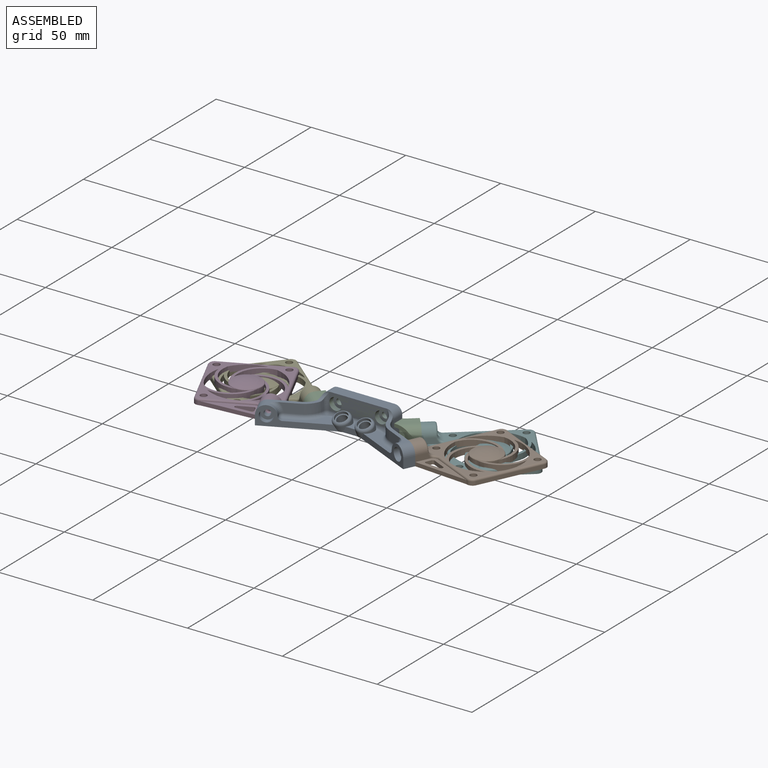
[diagram: assembled view]
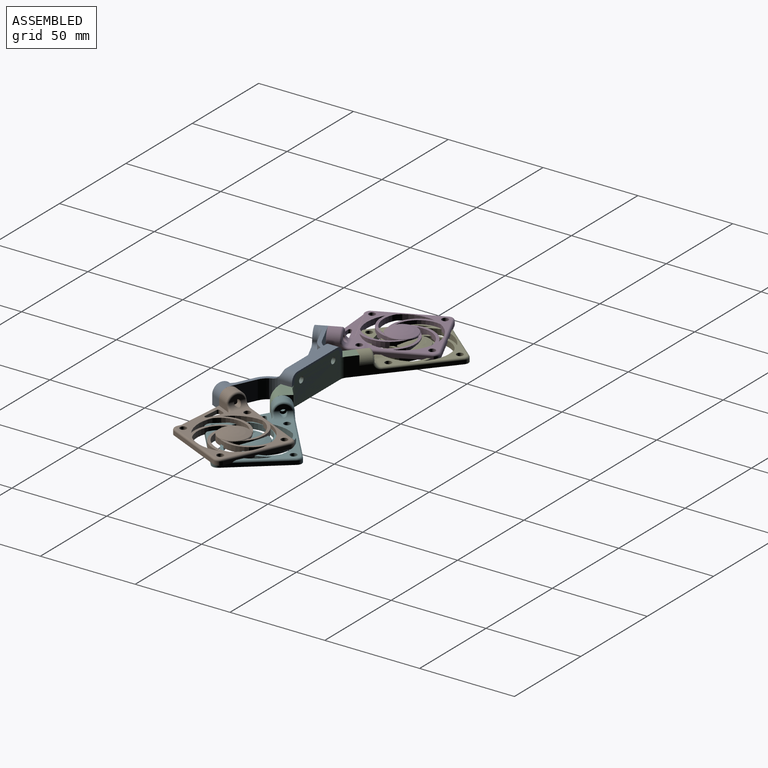
[diagram: assembled view, second angle]
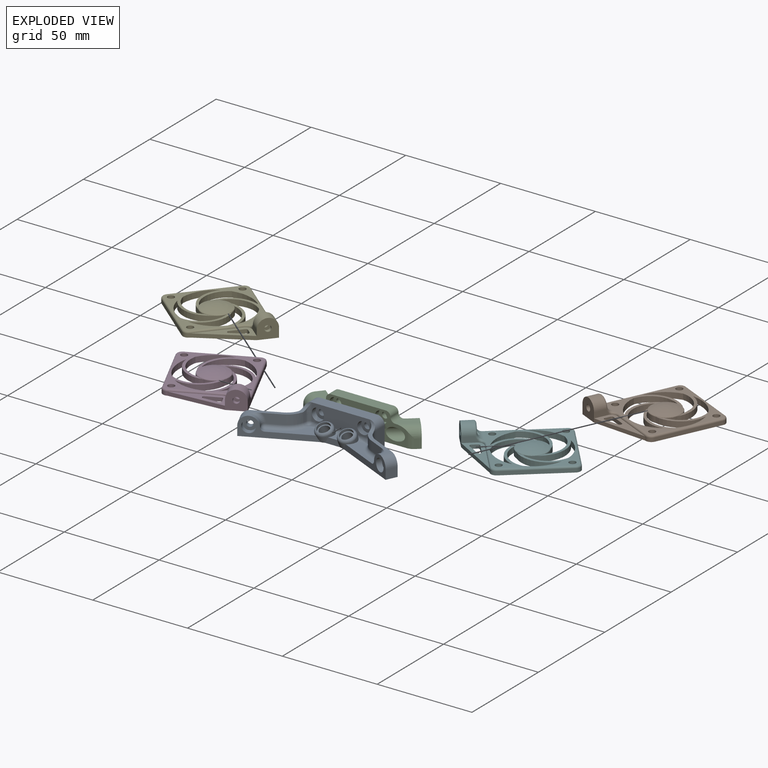
[diagram: exploded view]
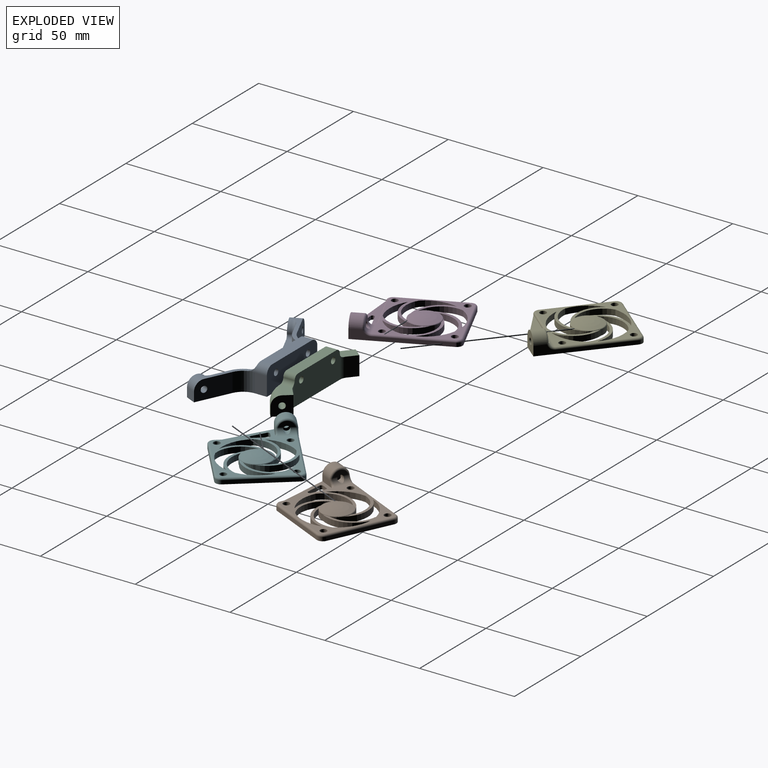
[diagram: exploded view, second angle]
ASSEMBLY  parts=6 mates=4
PART A: 75 faces, bbox 83.4x28.1x16.4 mm
  f0: cylinder r=2.6mm len=7.92mm, axis (0,-0.41,0.91), area 84.6mm2, adj f20,f65
  f1: cylinder r=4.5mm len=9.19mm, axis (0,-0.41,0.91), area 41.3mm2, adj f5,f6,f8,f14,f15,f19,f20,f57
  f2: cylinder r=2.6mm len=7.92mm, axis (0,-0.41,0.91), area 84.6mm2, adj f20,f67
  f3: cylinder r=4.5mm len=9.19mm, axis (0,-0.41,0.91), area 41.3mm2, adj f4,f5,f6,f7,f8,f15,f16,f20
  f4: plane 21.26x14.93mm, normal (0,0,1), area 81.6mm2, adj f3,f7,f16,f50,f59,f60
  f5: cylinder r=2mm len=6.29mm, axis (1,0,0), area 14.1mm2, adj f1,f3,f6,f8
  f6: plane 5.08x4.1mm, normal (0,0,1), area 14mm2, adj f1,f3,f5,f15
  f7: cylinder r=2mm len=6.26mm, axis (1,0,0), area 16.8mm2, adj f3,f4,f8,f58
  f8: plane 30.35x9.12mm, normal (0,-1,0), area 188.2mm2, adj f1,f3,f5,f7,f21,f29,f32,f44
  f9: plane 10x6.27mm, normal (1,0,0), area 62.7mm2, adj f10,f20,f37,f71
  f10: plane 38x14mm, normal (0,1,0), area 508mm2, adj f9,f11,f20,f21,f27,f30,f71,f73
  f11: plane 10x6.27mm, normal (-1,0,0), area 62.7mm2, adj f10,f20,f36,f73
  f12: plane 17.46x10mm, normal (-0.42,0.91,0), area 178.7mm2, adj f13,f20,f22,f24,f36,f43
  f13: plane 5.44x5mm, normal (-0.91,-0.42,0), area 30mm2, adj f12,f14,f20,f43
  f14: plane 33.24x15.5mm, normal (0.42,-0.91,0), area 133.3mm2, adj f1,f13,f19,f20,f26,f43,f51
  f15: plane 8.03x3mm, normal (0,-1,0), area 18.8mm2, adj f1,f3,f6,f20
  f16: plane 33.24x15.5mm, normal (-0.42,-0.91,0), area 133.3mm2, adj f3,f4,f17,f20,f35,f42,f50
  f17: plane 5.44x5mm, normal (0.91,-0.42,0), area 30mm2, adj f16,f18,f20,f42
  f18: plane 17.46x10mm, normal (0.42,0.91,0), area 178.7mm2, adj f17,f20,f23,f33,f37,f42
  f19: plane 21.26x14.93mm, normal (0,0,1), area 81.6mm2, adj f1,f14,f51,f54,f55,f57
  f20: plane 83.41x28.09mm, normal (0,0,-1), area 798.7mm2, adj f0,f1,f2,f3,f9,f10,f11,f12
  f21: plane 30x6mm, normal (0,0,1), area 180mm2, adj f8,f10,f71,f73
  f22: plane 19.47x14.08mm, normal (0,0,1), area 47.2mm2, adj f12,f36,f38,f39,f43,f52,f64
  f23: plane 19.47x14.08mm, normal (0,0,1), area 47.2mm2, adj f18,f37,f40,f41,f42,f62,f63
  f24: cylinder r=1.65mm len=4.26mm, axis (0.42,-0.91,0), area 31.1mm2, adj f12,f25
  f25: plane 6.5x5.89mm, normal (0.42,-0.91,0), area 24.6mm2, adj f24,f26
  f26: cylinder r=3.25mm len=7.16mm, axis (0.42,-0.91,0), area 61.3mm2, adj f14,f25
  f27: cylinder r=1.65mm len=3.3mm, axis (0,-1,0), area 31.1mm2, adj f10,f28
  f28: plane 6.5x6.5mm, normal (0,-1,0), area 24.6mm2, adj f27,f29
  f29: cylinder r=3.25mm len=6.5mm, axis (0,-1,0), area 61.3mm2, adj f8,f28,f48
  f30: cylinder r=1.65mm len=3.3mm, axis (0,-1,0), area 31.1mm2, adj f10,f31
  f31: plane 6.5x6.5mm, normal (0,-1,0), area 24.6mm2, adj f30,f32
  f32: cylinder r=3.25mm len=6.5mm, axis (0,-1,0), area 61.3mm2, adj f8,f31,f45
  f33: cylinder r=1.65mm len=4.26mm, axis (-0.42,-0.91,0), area 31.1mm2, adj f18,f34
  f34: plane 6.5x5.89mm, normal (-0.42,-0.91,0), area 24.6mm2, adj f33,f35
  f35: cylinder r=3.25mm len=7.16mm, axis (-0.42,-0.91,0), area 61.3mm2, adj f16,f34
  f36: cylinder r=9mm len=10mm, axis (0,0,-1), area 102.1mm2, adj f11,f12,f20,f22,f74
  f37: cylinder r=9mm len=10mm, axis (0,0,-1), area 102.1mm2, adj f9,f18,f20,f23,f72
  f38: plane 8.49x5mm, normal (0.42,-0.91,0), area 39.6mm2, adj f22,f39,f52,f54
  f39: cylinder r=11mm len=8.5mm, axis (0,0,-1), area 55.6mm2, adj f22,f38,f47,f48,f49,f55,f64
  f40: cylinder r=11mm len=8.5mm, axis (0,0,-1), area 55.6mm2, adj f23,f41,f44,f45,f46,f59,f63
  f41: plane 8.49x5mm, normal (-0.42,-0.91,0), area 39.6mm2, adj f23,f40,f60,f62
  f42: cylinder r=5mm len=11.6mm, axis (-0.42,-0.91,0), area 62.8mm2, adj f16,f17,f18,f23,f50,f62
  f43: cylinder r=5mm len=11.6mm, axis (-0.42,0.91,0), area 62.8mm2, adj f12,f13,f14,f22,f51,f52
  f44: cylinder r=2mm len=3.08mm, axis (0,0,-1), area 8.8mm2, adj f8,f40,f45,f58
  f45: bspline ~3.27x2.36mm, area 5.1mm2, adj f32,f40,f44,f46
  f46: cylinder r=2mm len=4.08mm, axis (0,0,-1), area 6.5mm2, adj f8,f40,f45,f63,f71
  f47: cylinder r=2mm len=3.08mm, axis (0,0,-1), area 8.8mm2, adj f8,f39,f48,f56
  f48: bspline ~3.27x2.36mm, area 5.1mm2, adj f29,f39,f47,f49
  f49: cylinder r=2mm len=4.08mm, axis (0,0,-1), area 6.5mm2, adj f8,f39,f48,f64,f73
  f50: cylinder r=2mm len=2.66mm, axis (-0.42,-0.91,0), area 6.3mm2, adj f4,f16,f42,f61
  f51: cylinder r=2mm len=2.66mm, axis (-0.42,0.91,0), area 6.3mm2, adj f14,f19,f43,f53
  f52: torus R=7mm, axis (-0.42,0.91,0), area 20mm2, adj f22,f38,f43,f53
  f53: sphere r=2mm, area 6.3mm2, adj f51,f52,f54
  f54: cylinder r=2mm len=7.43mm, axis (0.91,0.42,0), area 22.8mm2, adj f19,f38,f53,f55
  f55: torus R=13mm, axis (0,0,1), area 36.9mm2, adj f19,f39,f54,f56
  f56: sphere r=2mm, area 5.7mm2, adj f47,f55,f57
  f57: cylinder r=2mm len=6.26mm, axis (1,0,0), area 16.8mm2, adj f1,f8,f19,f56
  f58: sphere r=2mm, area 5.9mm2, adj f7,f44,f59
  f59: torus R=13mm, axis (0,0,1), area 36.9mm2, adj f4,f40,f58,f60
  f60: cylinder r=2mm len=7.43mm, axis (0.91,-0.42,0), area 22.8mm2, adj f4,f41,f59,f61
  f61: sphere r=2mm, area 6.3mm2, adj f50,f60,f62
  f62: torus R=7mm, axis (0.42,0.91,0), area 20mm2, adj f23,f41,f42,f61
  f63: cylinder r=4mm len=4.69mm, axis (1,0,0), area 11.8mm2, adj f23,f40,f46,f71,f72
  f64: cylinder r=4mm len=4.69mm, axis (1,0,0), area 11.8mm2, adj f22,f39,f49,f73,f74
  f65: plane 6.5x5.94mm, normal (0,-0.41,0.91), area 11.9mm2, adj f0,f66
  f66: cylinder r=3.25mm len=6.55mm, axis (0,-0.41,0.91), area 30.6mm2, adj f65,f70
  f67: plane 6.5x5.94mm, normal (0,-0.41,0.91), area 11.9mm2, adj f2,f68
  f68: cylinder r=3.25mm len=6.55mm, axis (0,-0.41,0.91), area 30.6mm2, adj f67,f69
  f69: torus R=3mm, axis (0,-0.41,0.91), area 51.6mm2, adj f3,f8,f68
  f70: torus R=3mm, axis (0,-0.41,0.91), area 51.6mm2, adj f1,f8,f66
  f71: cylinder r=4mm len=6.27mm, axis (0,-1,0), area 38.6mm2, adj f8,f9,f10,f21,f46,f63,f72
  f72: torus R=13mm, axis (0,0,1), area 2.7mm2, adj f37,f63,f71
  f73: cylinder r=4mm len=6.27mm, axis (0,1,0), area 38.6mm2, adj f8,f10,f11,f21,f49,f64,f74
  f74: torus R=13mm, axis (0,0,1), area 2.7mm2, adj f36,f64,f73
PART B: 70 faces, bbox 50.2x40.5x10.4 mm
  f0: plane 50x40mm, normal (0,0,-1), area 1039.2mm2, adj f3,f4,f5,f6,f7,f8,f10,f11
  f1: cylinder r=1.65mm len=3.79mm, axis (-1,0,0), area 27.7mm2, adj f2,f37,f56
  f2: cylinder r=3mm len=9.35mm, axis (0,-1,0), area 30mm2, adj f1,f36,f37,f44,f46,f48,f51,f52
  f3: cylinder r=18.5mm len=15.49mm, axis (0,0,-1), area 55.1mm2, adj f0,f4,f35,f36
  f4: cylinder r=14.5mm len=21.17mm, axis (0,0,-1), area 73.3mm2, adj f0,f3,f5,f36
  f5: cylinder r=8mm len=5.63mm, axis (0,0,-1), area 18.7mm2, adj f0,f4,f35,f61
  f6: cylinder r=14.5mm len=21.52mm, axis (0,0,-1), area 73.3mm2, adj f0,f7,f26,f36
  f7: cylinder r=8mm len=4.64mm, axis (0,0,-1), area 18.7mm2, adj f0,f6,f8,f61
  f8: cylinder r=13mm len=15.13mm, axis (0,0,-1), area 69.2mm2, adj f0,f7,f26,f36
  f9: plane 7x3mm, normal (0,-1,0), area 20.1mm2, adj f10,f27,f38,f46,f69
  f10: plane 10x10mm, normal (-1,0,0), area 80.7mm2, adj f0,f9,f11,f38,f53,f62
  f11: plane 47x5mm, normal (0,1,0), area 115.4mm2, adj f0,f10,f12,f38,f49,f51
  f12: cylinder r=3mm len=3mm, axis (0,0,-1), area 9.4mm2, adj f0,f11,f13,f47
  f13: plane 34x2mm, normal (1,0,0), area 68mm2, adj f0,f12,f14,f45
  f14: cylinder r=3mm len=3mm, axis (0,0,-1), area 9.4mm2, adj f0,f13,f15,f43
  f15: plane 34x2mm, normal (0,-1,0), area 68mm2, adj f0,f14,f16,f41
  f16: cylinder r=3mm len=3mm, axis (0,0,-1), area 9.4mm2, adj f0,f15,f39,f62
  f17: cylinder r=13mm len=17.35mm, axis (0,0,-1), area 69.2mm2, adj f0,f18,f28,f36
  f18: cylinder r=18.5mm len=15.89mm, axis (0,0,-1), area 55.1mm2, adj f0,f17,f19,f36
  f19: cylinder r=14.5mm len=19.77mm, axis (0,0,-1), area 73.3mm2, adj f0,f18,f28,f36
  f20: cylinder r=13mm len=19.67mm, axis (0,0,-1), area 69.2mm2, adj f0,f21,f29,f36
  f21: cylinder r=18.5mm len=17.46mm, axis (0,0,-1), area 55.1mm2, adj f0,f20,f22,f36
  f22: cylinder r=14.5mm len=16.08mm, axis (0,0,-1), area 73.3mm2, adj f0,f21,f29,f36
  f23: cylinder r=13mm len=20.07mm, axis (0,0,-1), area 69.2mm2, adj f0,f24,f30,f36
  f24: cylinder r=18.5mm len=17.32mm, axis (0,0,-1), area 55.1mm2, adj f0,f23,f25,f36
  f25: cylinder r=14.5mm len=18.75mm, axis (0,0,-1), area 73.3mm2, adj f0,f24,f30,f36
  f26: cylinder r=18.5mm len=12.76mm, axis (0,0,-1), area 55.1mm2, adj f0,f6,f8,f36
  f27: cylinder r=3mm len=2.25mm, axis (0,0,-1), area 1mm2, adj f9,f44,f69
  f28: cylinder r=8mm len=5.18mm, axis (0,0,-1), area 18.7mm2, adj f0,f17,f19,f61
  f29: cylinder r=8mm len=5.92mm, axis (0,0,-1), area 18.7mm2, adj f0,f20,f22,f61
  f30: cylinder r=8mm len=6.07mm, axis (0,0,-1), area 18.7mm2, adj f0,f23,f25,f61
  f31: cylinder r=1.75mm len=3.5mm, axis (0,0,-1), area 33mm2, adj f0,f36
  f32: cylinder r=1.75mm len=3.5mm, axis (0,0,-1), area 33mm2, adj f0,f36
  f33: cylinder r=1.75mm len=3.5mm, axis (0,0,-1), area 33mm2, adj f0,f36
  f34: cylinder r=1.75mm len=3.5mm, axis (0,0,-1), area 33mm2, adj f0,f36
  f35: cylinder r=13mm len=18.5mm, axis (0,0,-1), area 69.2mm2, adj f0,f3,f5,f36
  f36: plane 39x38mm, normal (0,0,1), area 507.4mm2, adj f2,f3,f4,f6,f8,f17,f18,f19
  f37: plane 7.75x3mm, normal (1,0,0), area 16mm2, adj f1,f2,f50
  f38: cylinder r=5mm len=10mm, axis (1,0,0), area 94.4mm2, adj f9,f10,f11,f48,f50,f52
  f39: torus R=2mm, axis (0,0,1), area 6.5mm2, adj f16,f36,f40,f41
  f40: cylinder r=1mm len=24mm, axis (0,-1,0), area 37.7mm2, adj f36,f39,f42,f69
  f41: cylinder r=1mm len=34mm, axis (1,0,0), area 53.4mm2, adj f15,f36,f39,f43
  f42: torus R=4mm, axis (0,0,1), area 3.8mm2, adj f36,f40,f44,f69
  f43: torus R=2mm, axis (0,0,1), area 6.5mm2, adj f14,f36,f41,f45
  f44: bspline ~3.62x2.56mm, area 4.6mm2, adj f2,f27,f42,f46
  f45: cylinder r=1mm len=34mm, axis (0,1,0), area 53.4mm2, adj f13,f36,f43,f47
  f46: torus R=4mm, axis (0,-1,0), area 2.5mm2, adj f2,f9,f44,f48
  f47: torus R=2mm, axis (0,0,1), area 6.5mm2, adj f12,f36,f45,f49
  f48: bspline ~2.93x1.36mm, area 1.6mm2, adj f2,f38,f46,f50
  f49: cylinder r=1mm len=37mm, axis (-1,0,0), area 58.1mm2, adj f11,f36,f47,f51
  f50: torus R=4mm, axis (-1,0,0), area 19.2mm2, adj f37,f38,f48,f52
  f51: torus R=4mm, axis (0,1,0), area 7mm2, adj f2,f11,f49,f52
  f52: bspline ~3.07x1.41mm, area 1.6mm2, adj f2,f38,f50,f51
  f53: cylinder r=1.65mm len=3.3mm, axis (-1,0,0), area 20.7mm2, adj f10,f57
  f54: plane 6.73x2.8mm, normal (0,-1,0), area 18.8mm2, adj f0,f56,f57,f58
  f55: plane 6.73x2.8mm, normal (0,1,0), area 18.8mm2, adj f0,f56,f57,f59
  f56: plane 8.4x5.8mm, normal (-1,0,0), area 35.3mm2, adj f0,f1,f54,f55,f58,f59
  f57: plane 8.4x5.8mm, normal (1,0,0), area 35.3mm2, adj f0,f53,f54,f55,f58,f59
  f58: plane 2.9x2.8mm, normal (0,-0.5,-0.87), area 9.4mm2, adj f54,f56,f57,f59
  f59: plane 2.9x2.8mm, normal (0,0.5,-0.87), area 9.4mm2, adj f55,f56,f57,f58
  f60: torus R=0.11mm, axis (0,0,-1), area 190.8mm2, adj f61
  f61: torus R=7.51mm, axis (0,0,-1), area 23.8mm2, adj f5,f7,f28,f29,f30,f36,f60
  f62: plane 27x10mm, normal (-0.94,-0.35,0), area 57.6mm2, adj f0,f10,f16,f69
  f63: cylinder r=1mm len=2mm, axis (0,0,-1), area 3.1mm2, adj f0,f64,f68,f69
  f64: plane 7.26x2mm, normal (-1,0,0), area 14.5mm2, adj f0,f63,f65,f69
  f65: cylinder r=1mm len=2mm, axis (0,0,-1), area 5.6mm2, adj f0,f64,f66,f69
  f66: plane 7.26x2.69mm, normal (0.94,0.35,0), area 15.5mm2, adj f0,f65,f67,f69
  f67: cylinder r=1mm len=2mm, axis (0,0,-1), area 3.9mm2, adj f0,f66,f68,f69
  f68: plane 2.69x2mm, normal (0,-1,0), area 5.4mm2, adj f0,f63,f67,f69
  f69: plane 27x10mm, normal (0,0,1), area 102.5mm2, adj f9,f27,f40,f42,f62,f63,f64,f65
PART C: 34 faces, bbox 64.1x17.5x16.6 mm
  f0: plane 10.87x8.52mm, normal (0,0,1), area 45.2mm2, adj f6,f9,f10,f11,f19,f26
  f1: cylinder r=5mm len=11.57mm, axis (0,0,-1), area 36.8mm2, adj f2,f12,f13,f14,f17
  f2: plane 10x4.42mm, normal (0.64,0.77,0), area 57.6mm2, adj f1,f3,f13,f14
  f3: plane 10x7.66mm, normal (-0.77,0.64,0), area 86.1mm2, adj f2,f4,f13,f14,f27,f29
  f4: plane 5x2.44mm, normal (-0.64,-0.77,0), area 15.9mm2, adj f3,f5,f14,f27
  f5: cylinder r=5mm len=8.21mm, axis (0,0,-1), area 23.1mm2, adj f4,f6,f14,f27
  f6: plane 52.8x16.63mm, normal (0,-1,0), area 505.6mm2, adj f0,f5,f7,f13,f14,f15,f16,f17
  f7: cylinder r=5mm len=8.21mm, axis (0,0,-1), area 23.1mm2, adj f6,f8,f14,f26
  f8: plane 5x2.44mm, normal (0.64,-0.77,0), area 15.9mm2, adj f7,f9,f14,f26
  f9: plane 10x7.66mm, normal (0.77,0.64,0), area 86.1mm2, adj f0,f8,f10,f14,f26,f28
  f10: plane 10x4.42mm, normal (-0.64,0.77,0), area 57.6mm2, adj f0,f9,f11,f14
  f11: cylinder r=5mm len=11.57mm, axis (0,0,-1), area 36.8mm2, adj f0,f10,f12,f14,f19
  f12: plane 34.36x15mm, normal (0,1,0), area 494.5mm2, adj f1,f11,f14,f15,f16,f17,f18,f19
  f13: plane 10.87x8.52mm, normal (0,0,1), area 45.2mm2, adj f1,f2,f3,f6,f17,f27
  f14: plane 62.47x10.87mm, normal (0,0,-1), area 404.3mm2, adj f1,f2,f3,f4,f5,f6,f7,f8
  f15: plane 29x6mm, normal (0,0,1), area 174mm2, adj f6,f12,f16,f18
  f16: cylinder r=2.5mm len=6mm, axis (0,1,0), area 23.6mm2, adj f6,f12,f15,f17
  f17: cylinder r=2.5mm len=6.57mm, axis (0,-1,0), area 24.4mm2, adj f1,f6,f12,f13,f16
  f18: cylinder r=2.5mm len=6mm, axis (0,-1,0), area 23.6mm2, adj f6,f12,f15,f19
  f19: cylinder r=2.5mm len=6.57mm, axis (0,1,0), area 24.4mm2, adj f0,f6,f11,f12,f18
  f20: cylinder r=1.65mm len=3.3mm, axis (0,-1,0), area 31.1mm2, adj f12,f21
  f21: plane 6.5x6.5mm, normal (0,-1,0), area 24.6mm2, adj f20,f22
  f22: cylinder r=3.25mm len=6.5mm, axis (0,-1,0), area 61.3mm2, adj f6,f21
  f23: cylinder r=1.65mm len=3.3mm, axis (0,-1,0), area 31.1mm2, adj f12,f24
  f24: plane 6.5x6.5mm, normal (0,-1,0), area 24.6mm2, adj f23,f25
  f25: cylinder r=3.25mm len=6.5mm, axis (0,-1,0), area 61.3mm2, adj f6,f24
  f26: cylinder r=5mm len=11.61mm, axis (-0.77,-0.64,0), area 54.6mm2, adj f0,f6,f7,f8,f9
  f27: cylinder r=5mm len=11.61mm, axis (-0.77,0.64,0), area 54.6mm2, adj f3,f4,f5,f6,f13
  f28: cylinder r=1.65mm len=5.95mm, axis (0.77,0.64,0), area 51.8mm2, adj f9,f31
  f29: cylinder r=1.65mm len=5.95mm, axis (-0.77,0.64,0), area 51.8mm2, adj f3,f33
  f30: cylinder r=3.25mm len=11.73mm, axis (0.77,0.64,0), area 122.1mm2, adj f6,f31
  f31: plane 6.5x4.98mm, normal (-0.77,-0.64,0), area 24.6mm2, adj f28,f30
  f32: cylinder r=3.25mm len=11.77mm, axis (-0.77,0.64,0), area 122.1mm2, adj f6,f33
  f33: plane 6.5x4.98mm, normal (0.77,-0.64,0), area 24.6mm2, adj f29,f32
PART D: 70 faces, bbox 50.2x40.5x10.4 mm
  f0: plane 50x40mm, normal (0,0,-1), area 1039.2mm2, adj f3,f4,f5,f6,f7,f8,f10,f11
  f1: cylinder r=1.65mm len=3.79mm, axis (1,0,0), area 27.7mm2, adj f2,f37,f56
  f2: cylinder r=3mm len=9.35mm, axis (0,-1,0), area 30mm2, adj f1,f36,f37,f44,f46,f48,f51,f52
  f3: cylinder r=18.5mm len=15.49mm, axis (0,0,-1), area 55.1mm2, adj f0,f4,f35,f36
  f4: cylinder r=14.5mm len=21.17mm, axis (0,0,-1), area 73.3mm2, adj f0,f3,f5,f36
  f5: cylinder r=8mm len=5.63mm, axis (0,0,-1), area 18.7mm2, adj f0,f4,f35,f61
  f6: cylinder r=14.5mm len=21.52mm, axis (0,0,-1), area 73.3mm2, adj f0,f7,f26,f36
  f7: cylinder r=8mm len=4.64mm, axis (0,0,-1), area 18.7mm2, adj f0,f6,f8,f61
  f8: cylinder r=13mm len=15.13mm, axis (0,0,-1), area 69.2mm2, adj f0,f7,f26,f36
  f9: plane 7x3mm, normal (0,-1,0), area 20.1mm2, adj f10,f27,f38,f46,f69
  f10: plane 10x10mm, normal (1,0,0), area 80.7mm2, adj f0,f9,f11,f38,f53,f62
  f11: plane 47x5mm, normal (0,1,0), area 115.4mm2, adj f0,f10,f12,f38,f49,f51
  f12: cylinder r=3mm len=3mm, axis (0,0,-1), area 9.4mm2, adj f0,f11,f13,f47
  f13: plane 34x2mm, normal (-1,0,0), area 68mm2, adj f0,f12,f14,f45
  f14: cylinder r=3mm len=3mm, axis (0,0,-1), area 9.4mm2, adj f0,f13,f15,f43
  f15: plane 34x2mm, normal (0,-1,0), area 68mm2, adj f0,f14,f16,f41
  f16: cylinder r=3mm len=3mm, axis (0,0,-1), area 9.4mm2, adj f0,f15,f39,f62
  f17: cylinder r=13mm len=17.35mm, axis (0,0,-1), area 69.2mm2, adj f0,f18,f28,f36
  f18: cylinder r=18.5mm len=15.89mm, axis (0,0,-1), area 55.1mm2, adj f0,f17,f19,f36
  f19: cylinder r=14.5mm len=19.77mm, axis (0,0,-1), area 73.3mm2, adj f0,f18,f28,f36
  f20: cylinder r=13mm len=19.67mm, axis (0,0,-1), area 69.2mm2, adj f0,f21,f29,f36
  f21: cylinder r=18.5mm len=17.46mm, axis (0,0,-1), area 55.1mm2, adj f0,f20,f22,f36
  f22: cylinder r=14.5mm len=16.08mm, axis (0,0,-1), area 73.3mm2, adj f0,f21,f29,f36
  f23: cylinder r=13mm len=20.07mm, axis (0,0,-1), area 69.2mm2, adj f0,f24,f30,f36
  f24: cylinder r=18.5mm len=17.32mm, axis (0,0,-1), area 55.1mm2, adj f0,f23,f25,f36
  f25: cylinder r=14.5mm len=18.75mm, axis (0,0,-1), area 73.3mm2, adj f0,f24,f30,f36
  f26: cylinder r=18.5mm len=12.76mm, axis (0,0,-1), area 55.1mm2, adj f0,f6,f8,f36
  f27: cylinder r=3mm len=2.25mm, axis (0,0,-1), area 1mm2, adj f9,f44,f69
  f28: cylinder r=8mm len=5.18mm, axis (0,0,-1), area 18.7mm2, adj f0,f17,f19,f61
  f29: cylinder r=8mm len=5.92mm, axis (0,0,-1), area 18.7mm2, adj f0,f20,f22,f61
  f30: cylinder r=8mm len=6.07mm, axis (0,0,-1), area 18.7mm2, adj f0,f23,f25,f61
  f31: cylinder r=1.75mm len=3.5mm, axis (0,0,-1), area 33mm2, adj f0,f36
  f32: cylinder r=1.75mm len=3.5mm, axis (0,0,-1), area 33mm2, adj f0,f36
  f33: cylinder r=1.75mm len=3.5mm, axis (0,0,-1), area 33mm2, adj f0,f36
  f34: cylinder r=1.75mm len=3.5mm, axis (0,0,-1), area 33mm2, adj f0,f36
  f35: cylinder r=13mm len=18.5mm, axis (0,0,-1), area 69.2mm2, adj f0,f3,f5,f36
  f36: plane 39x38mm, normal (0,0,1), area 507.4mm2, adj f2,f3,f4,f6,f8,f17,f18,f19
  f37: plane 7.75x3mm, normal (-1,0,0), area 16mm2, adj f1,f2,f50
  f38: cylinder r=5mm len=10mm, axis (-1,0,0), area 94.4mm2, adj f9,f10,f11,f48,f50,f52
  f39: torus R=2mm, axis (0,0,1), area 6.5mm2, adj f16,f36,f40,f41
  f40: cylinder r=1mm len=24mm, axis (0,-1,0), area 37.7mm2, adj f36,f39,f42,f69
  f41: cylinder r=1mm len=34mm, axis (-1,0,0), area 53.4mm2, adj f15,f36,f39,f43
  f42: torus R=4mm, axis (0,0,1), area 3.8mm2, adj f36,f40,f44,f69
  f43: torus R=2mm, axis (0,0,1), area 6.5mm2, adj f14,f36,f41,f45
  f44: bspline ~3.62x2.56mm, area 4.6mm2, adj f2,f27,f42,f46
  f45: cylinder r=1mm len=34mm, axis (0,1,0), area 53.4mm2, adj f13,f36,f43,f47
  f46: torus R=4mm, axis (0,-1,0), area 2.5mm2, adj f2,f9,f44,f48
  f47: torus R=2mm, axis (0,0,1), area 6.5mm2, adj f12,f36,f45,f49
  f48: bspline ~2.93x1.36mm, area 1.6mm2, adj f2,f38,f46,f50
  f49: cylinder r=1mm len=37mm, axis (1,0,0), area 58.1mm2, adj f11,f36,f47,f51
  f50: torus R=4mm, axis (1,0,0), area 19.2mm2, adj f37,f38,f48,f52
  f51: torus R=4mm, axis (0,1,0), area 7mm2, adj f2,f11,f49,f52
  f52: bspline ~3.07x1.41mm, area 1.6mm2, adj f2,f38,f50,f51
  f53: cylinder r=1.65mm len=3.3mm, axis (1,0,0), area 20.7mm2, adj f10,f57
  f54: plane 6.73x2.8mm, normal (0,-1,0), area 18.8mm2, adj f0,f56,f57,f58
  f55: plane 6.73x2.8mm, normal (0,1,0), area 18.8mm2, adj f0,f56,f57,f59
  f56: plane 8.4x5.8mm, normal (1,0,0), area 35.3mm2, adj f0,f1,f54,f55,f58,f59
  f57: plane 8.4x5.8mm, normal (-1,0,0), area 35.3mm2, adj f0,f53,f54,f55,f58,f59
  f58: plane 2.9x2.8mm, normal (0,-0.5,-0.87), area 9.4mm2, adj f54,f56,f57,f59
  f59: plane 2.9x2.8mm, normal (0,0.5,-0.87), area 9.4mm2, adj f55,f56,f57,f58
  f60: torus R=0.11mm, axis (0,0,-1), area 190.8mm2, adj f61
  f61: torus R=7.51mm, axis (0,0,-1), area 23.8mm2, adj f5,f7,f28,f29,f30,f36,f60
  f62: plane 27x10mm, normal (0.94,-0.35,0), area 57.6mm2, adj f0,f10,f16,f69
  f63: cylinder r=1mm len=2mm, axis (0,0,-1), area 3.1mm2, adj f0,f64,f68,f69
  f64: plane 7.26x2mm, normal (1,0,0), area 14.5mm2, adj f0,f63,f65,f69
  f65: cylinder r=1mm len=2mm, axis (0,0,-1), area 5.6mm2, adj f0,f64,f66,f69
  f66: plane 7.26x2.69mm, normal (-0.94,0.35,0), area 15.5mm2, adj f0,f65,f67,f69
  f67: cylinder r=1mm len=2mm, axis (0,0,-1), area 3.9mm2, adj f0,f66,f68,f69
  f68: plane 2.69x2mm, normal (0,-1,0), area 5.4mm2, adj f0,f63,f67,f69
  f69: plane 27x10mm, normal (0,0,1), area 102.5mm2, adj f9,f27,f40,f42,f62,f63,f64,f65
PART E: same geometry as D
PART F: same geometry as B
PLACE A t=(0,2,2)mm
PLACE B rot(axis=(0,0,1),65deg) t=(46.03,-78.18,2)mm
PLACE C at identity fixed
PLACE D rot(axis=(0,0,-1),65deg) t=(-89.98,16.07,2)mm
PLACE E rot(axis=(0,0,-1),40deg) t=(-88.82,12.37,0)mm
PLACE F rot(axis=(0,0,1),40deg) t=(9.15,-54.48,0)mm
MATE fastened A.f30 <-> C.f23  axis (0,1,0) through (12,6,11)mm
MATE fastened F.f38 <-> C.f26  axis (-0.77,-0.64,0) through (28.02,7.04,5)mm
MATE fastened B.f38 <-> A.f33  axis (-0.42,-0.91,0) through (37.13,-14.45,7)mm
MATE fastened E.f50 <-> C.f27  axis (0.77,-0.64,0) through (-28.02,7.04,5)mm
